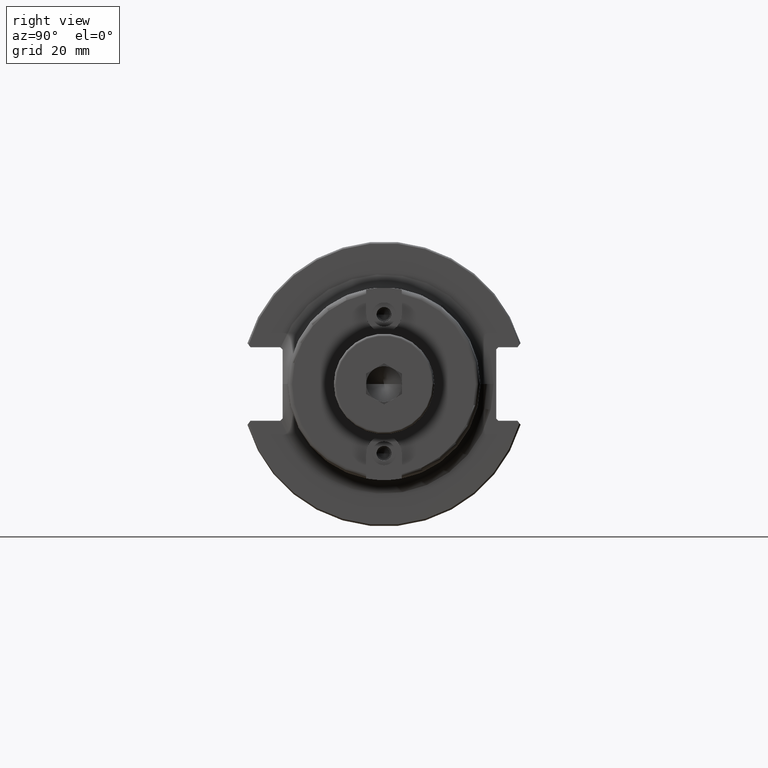
[diagram: clean part render]
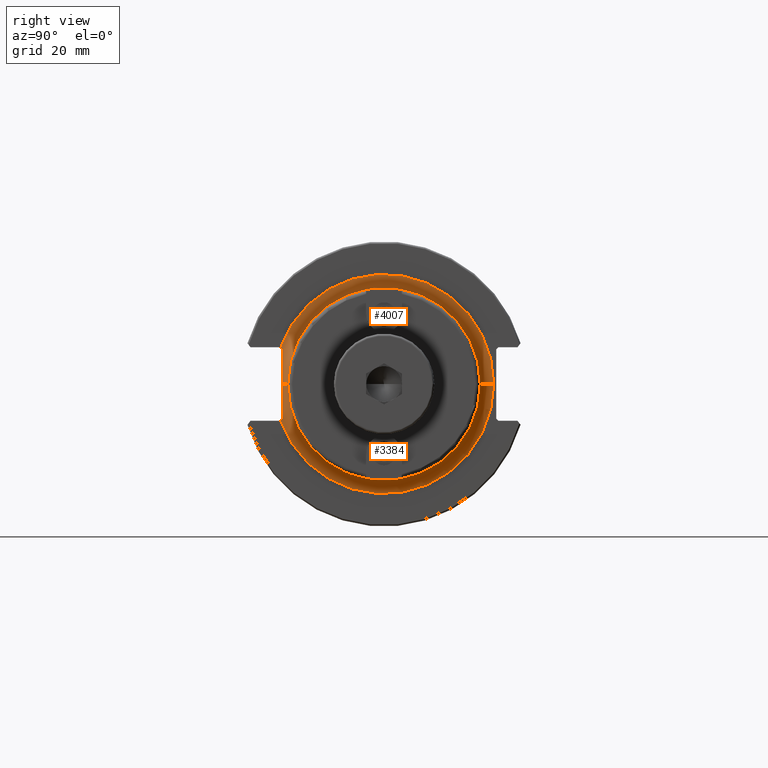
[diagram: same view with one multi-face feature highlighted, each face labeled with its STEP entity id]
A machine part, right view. The highlighted faces form ONE feature: a constant-radius fillet chain: 2 tangent blend faces with common blend radius 2.9972 mm. The faces share edges in the B-rep.
Their STEP definitions:
[1] entity #4007 (Torus):
#707=CARTESIAN_POINT('',(7.509842519685E-1,0.E0,0.E0));
#708=DIRECTION('',(1.E0,0.E0,0.E0));
#709=DIRECTION('',(0.E0,1.E0,0.E0));
#710=AXIS2_PLACEMENT_3D('',#707,#708,#709);
#718=CARTESIAN_POINT('',(7.756786870116E-1,-8.897637795276E-1,
9.470803800449E-7));
#726=CARTESIAN_POINT('',(8.689842519685E-1,-9.619999999995E-1,
1.023969896760E-6));
#727=DIRECTION('',(0.E0,-1.064417772099E-6,-9.999999999994E-1));
#728=DIRECTION('',(-7.907251267535E-1,6.121713599313E-1,-6.516060750815E-7));
#729=AXIS2_PLACEMENT_3D('',#726,#727,#728);
#1140=CARTESIAN_POINT('',(8.689842519685E-1,0.E0,0.E0));
#1141=DIRECTION('',(1.E0,0.E0,0.E0));
#1142=DIRECTION('',(0.E0,1.E0,0.E0));
#1143=AXIS2_PLACEMENT_3D('',#1140,#1141,#1142);
#1163=CARTESIAN_POINT('',(8.689842519685E-1,9.62E-1,-1.044303532538E-13));
#1164=DIRECTION('',(0.E0,1.085537909562E-13,1.E0));
#1165=DIRECTION('',(-1.E0,-2.916687607066E-13,0.E0));
#1166=AXIS2_PLACEMENT_3D('',#1163,#1164,#1165);
#1168=CARTESIAN_POINT('',(7.530794966055E-1,-8.897637795276E-1,
3.027559055118E-1));
#1169=CARTESIAN_POINT('',(7.545986661702E-1,-8.897637795276E-1,
2.780647102517E-1));
#1170=CARTESIAN_POINT('',(7.590338579141E-1,-8.897637795276E-1,
2.281344385967E-1));
#1171=CARTESIAN_POINT('',(7.672713849968E-1,-8.897637795276E-1,
1.519649355457E-1));
#1172=CARTESIAN_POINT('',(7.741696764E-1,-8.897637795276E-1,7.268661059240E-2));
#1173=CARTESIAN_POINT('',(7.756786673224E-1,-8.897637795276E-1,
2.389378941772E-2));
#1174=CARTESIAN_POINT('',(7.756786870116E-1,-8.897637795276E-1,
9.470803800449E-7));
#1176=CARTESIAN_POINT('',(7.509842519685E-1,-9.071663225931E-1,
3.201642967730E-1));
#1177=CARTESIAN_POINT('',(7.509842519685E-1,-9.040849670435E-1,
3.170829412235E-1));
#1178=CARTESIAN_POINT('',(7.513761544185E-1,-8.980977113740E-1,
3.110869132604E-1));
#1179=CARTESIAN_POINT('',(7.524201512299E-1,-8.924844496911E-1,
3.054765756753E-1));
#1180=CARTESIAN_POINT('',(7.530794966055E-1,-8.897637795276E-1,
3.027559055118E-1));
#2558=VERTEX_POINT('',#718);
#2560=VERTEX_POINT('',#1168);
#2561=CARTESIAN_POINT('',(8.689842519685E-1,-8.44E-1,0.E0));
#2562=CARTESIAN_POINT('',(8.689842519685E-1,8.44E-1,0.E0));
#2563=VERTEX_POINT('',#2561);
#2564=VERTEX_POINT('',#2562);
#2566=CARTESIAN_POINT('',(7.509842519685E-1,9.62E-1,0.E0));
#2568=VERTEX_POINT('',#2566);
#2569=CARTESIAN_POINT('',(7.509842519685E-1,-9.071600377156E-1,
3.201634988125E-1));
#2570=VERTEX_POINT('',#2569);
#3992=CARTESIAN_POINT('',(8.689842519685E-1,0.E0,0.E0));
#3993=DIRECTION('',(1.E0,0.E0,0.E0));
#3994=DIRECTION('',(0.E0,9.999401856406E-1,-1.093732787933E-2));
#3995=AXIS2_PLACEMENT_3D('',#3992,#3993,#3994);
#3996=TOROIDAL_SURFACE('',#3995,9.62E-1,1.18E-1);
#3997=ORIENTED_EDGE('',*,*,#3332,.F.);
#3998=ORIENTED_EDGE('',*,*,#3373,.T.);
#3999=ORIENTED_EDGE('',*,*,#3979,.T.);
#4000=ORIENTED_EDGE('',*,*,#3380,.F.);
#4002=ORIENTED_EDGE('',*,*,#4001,.F.);
#4004=ORIENTED_EDGE('',*,*,#4003,.F.);
#4005=EDGE_LOOP('',(#3997,#3998,#3999,#4000,#4002,#4004));
#4006=FACE_OUTER_BOUND('',#4005,.F.);
#4007=ADVANCED_FACE('',(#4006),#3996,.F.);
#711=CIRCLE('',#710,9.62E-1);
#730=CIRCLE('',#729,1.18E-1);
#1144=CIRCLE('',#1143,8.44E-1);
#1167=CIRCLE('',#1166,1.18E-1);
#1175=B_SPLINE_CURVE_WITH_KNOTS('',3,(#1168,#1169,#1170,#1171,#1172,#1173,
#1174),.UNSPECIFIED.,.F.,.F.,(4,1,1,1,4),(0.E0,2.5E-1,5.E-1,7.5E-1,1.E0),
.UNSPECIFIED.);
#1181=B_SPLINE_CURVE_WITH_KNOTS('',3,(#1176,#1177,#1178,#1179,#1180),
.UNSPECIFIED.,.F.,.F.,(4,1,4),(0.E0,5.E-1,1.E0),.UNSPECIFIED.);
#3332=EDGE_CURVE('',#2568,#2570,#711,.T.);
#3373=EDGE_CURVE('',#2568,#2564,#1167,.T.);
#3380=EDGE_CURVE('',#2558,#2563,#730,.T.);
#3979=EDGE_CURVE('',#2564,#2563,#1144,.T.);
#4001=EDGE_CURVE('',#2560,#2558,#1175,.T.);
#4003=EDGE_CURVE('',#2570,#2560,#1181,.T.);
[2] entity #3384 (Torus):
#702=CARTESIAN_POINT('',(7.509842519685E-1,0.E0,0.E0));
#703=DIRECTION('',(1.E0,0.E0,0.E0));
#704=DIRECTION('',(0.E0,-9.429948333286E-1,-3.328073681811E-1));
#705=AXIS2_PLACEMENT_3D('',#702,#703,#704);
#712=CARTESIAN_POINT('',(7.530794966055E-1,-8.897637795276E-1,
-3.027559055118E-1));
#713=CARTESIAN_POINT('',(7.524203311033E-1,-8.924837074759E-1,
-3.054758334601E-1));
#714=CARTESIAN_POINT('',(7.513763442259E-1,-8.980965747711E-1,
-3.110874611623E-1));
#715=CARTESIAN_POINT('',(7.509842519685E-1,-9.040834643323E-1,
-3.170780695026E-1));
#716=CARTESIAN_POINT('',(7.509842519685E-1,-9.071655732099E-1,
-3.201601783802E-1));
#718=CARTESIAN_POINT('',(7.756786870116E-1,-8.897637795276E-1,
9.470803800449E-7));
#719=CARTESIAN_POINT('',(7.756787067109E-1,-8.897637795276E-1,
-2.390414581369E-2));
#720=CARTESIAN_POINT('',(7.741677194975E-1,-8.897637795276E-1,
-7.271182373911E-2));
#721=CARTESIAN_POINT('',(7.672731726272E-1,-8.897637795276E-1,
-1.519448678587E-1));
#722=CARTESIAN_POINT('',(7.590357071437E-1,-8.897637795276E-1,
-2.281175139639E-1));
#723=CARTESIAN_POINT('',(7.545991707140E-1,-8.897637795276E-1,
-2.780565098569E-1));
#724=CARTESIAN_POINT('',(7.530794966055E-1,-8.897637795276E-1,
-3.027559055118E-1));
#726=CARTESIAN_POINT('',(8.689842519685E-1,-9.619999999995E-1,
1.023969896760E-6));
#727=DIRECTION('',(0.E0,-1.064417772099E-6,-9.999999999994E-1));
#728=DIRECTION('',(-7.907251267535E-1,6.121713599313E-1,-6.516060750815E-7));
#729=AXIS2_PLACEMENT_3D('',#726,#727,#728);
#758=CARTESIAN_POINT('',(8.689842519685E-1,0.E0,0.E0));
#759=DIRECTION('',(1.E0,0.E0,0.E0));
#760=DIRECTION('',(0.E0,-1.E0,0.E0));
#761=AXIS2_PLACEMENT_3D('',#758,#759,#760);
#1163=CARTESIAN_POINT('',(8.689842519685E-1,9.62E-1,-1.044303532538E-13));
#1164=DIRECTION('',(0.E0,1.085537909562E-13,1.E0));
#1165=DIRECTION('',(-1.E0,-2.916687607066E-13,0.E0));
#1166=AXIS2_PLACEMENT_3D('',#1163,#1164,#1165);
#2558=VERTEX_POINT('',#718);
#2559=VERTEX_POINT('',#724);
#2561=CARTESIAN_POINT('',(8.689842519685E-1,-8.44E-1,0.E0));
#2562=CARTESIAN_POINT('',(8.689842519685E-1,8.44E-1,0.E0));
#2563=VERTEX_POINT('',#2561);
#2564=VERTEX_POINT('',#2562);
#2565=CARTESIAN_POINT('',(7.509842519685E-1,-9.071610296621E-1,
-3.201606881902E-1));
#2566=CARTESIAN_POINT('',(7.509842519685E-1,9.62E-1,0.E0));
#2567=VERTEX_POINT('',#2565);
#2568=VERTEX_POINT('',#2566);
#3366=CARTESIAN_POINT('',(8.689842519685E-1,0.E0,0.E0));
#3367=DIRECTION('',(1.E0,0.E0,0.E0));
#3368=DIRECTION('',(0.E0,-1.485959642860E-3,9.999988959614E-1));
#3369=AXIS2_PLACEMENT_3D('',#3366,#3367,#3368);
#3370=TOROIDAL_SURFACE('',#3369,9.62E-1,1.18E-1);
#3372=ORIENTED_EDGE('',*,*,#3371,.T.);
#3374=ORIENTED_EDGE('',*,*,#3373,.F.);
#3375=ORIENTED_EDGE('',*,*,#3330,.F.);
#3377=ORIENTED_EDGE('',*,*,#3376,.F.);
#3379=ORIENTED_EDGE('',*,*,#3378,.F.);
#3381=ORIENTED_EDGE('',*,*,#3380,.T.);
#3382=EDGE_LOOP('',(#3372,#3374,#3375,#3377,#3379,#3381));
#3383=FACE_OUTER_BOUND('',#3382,.F.);
#3384=ADVANCED_FACE('',(#3383),#3370,.F.);
#706=CIRCLE('',#705,9.62E-1);
#717=B_SPLINE_CURVE_WITH_KNOTS('',3,(#712,#713,#714,#715,#716),.UNSPECIFIED.,
.F.,.F.,(4,1,4),(0.E0,5.E-1,1.E0),.UNSPECIFIED.);
#725=B_SPLINE_CURVE_WITH_KNOTS('',3,(#718,#719,#720,#721,#722,#723,#724),
.UNSPECIFIED.,.F.,.F.,(4,1,1,1,4),(0.E0,2.5E-1,5.E-1,7.5E-1,1.E0),
.UNSPECIFIED.);
#730=CIRCLE('',#729,1.18E-1);
#762=CIRCLE('',#761,8.44E-1);
#1167=CIRCLE('',#1166,1.18E-1);
#3330=EDGE_CURVE('',#2567,#2568,#706,.T.);
#3371=EDGE_CURVE('',#2563,#2564,#762,.T.);
#3373=EDGE_CURVE('',#2568,#2564,#1167,.T.);
#3376=EDGE_CURVE('',#2559,#2567,#717,.T.);
#3378=EDGE_CURVE('',#2558,#2559,#725,.T.);
#3380=EDGE_CURVE('',#2558,#2563,#730,.T.);